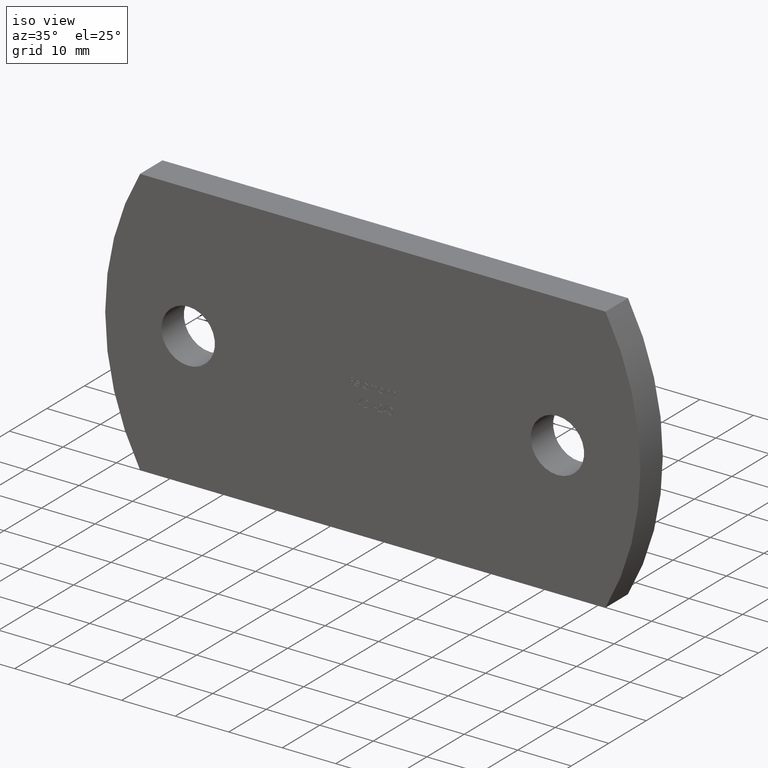
[diagram: clean part render]
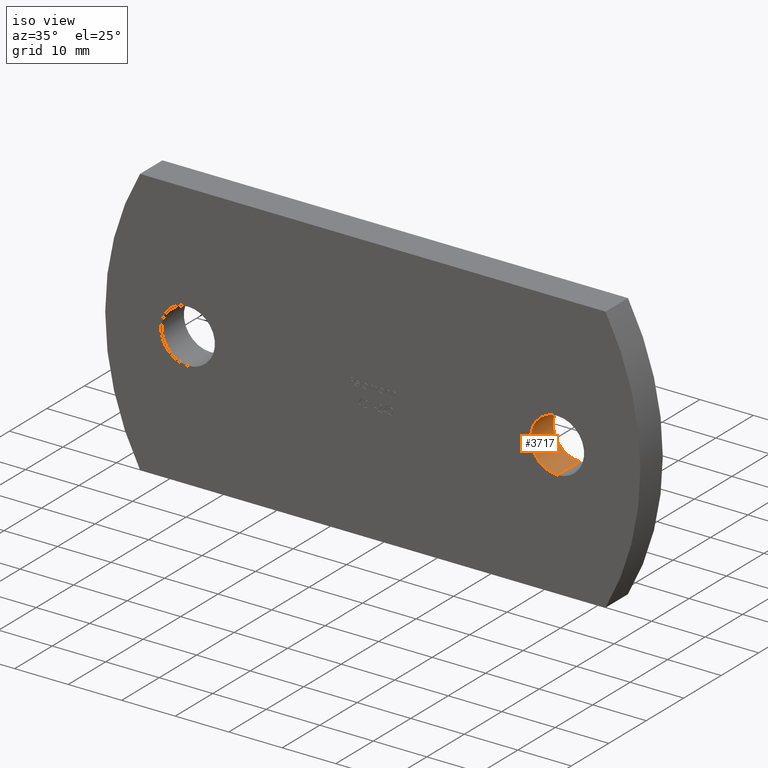
[diagram: same view with one face highlighted and labeled with its STEP entity id]
A machine part, iso view. The second image highlights one B-rep face of the part: STEP entity #3717.
In plain terms, the highlighted cylindrical surface (edge-blend (fillet) strip) has radius 5 mm, axis along (-0, 1, -0).
Its self-contained STEP definition (entity closure, byte-faithful):
#3 = DIRECTION ( 'NONE',  ( 0.000000000000000000, 0.000000000000000000, 1.000000000000000000 ) ) ;
#152 = CARTESIAN_POINT ( 'NONE',  ( 34.50000000000000000, -7.000000000000000000, 4.999999999999988454 ) ) ;
#211 = FACE_OUTER_BOUND ( 'NONE', #6444, .T. ) ;
#1185 = DIRECTION ( 'NONE',  ( 0.000000000000000000, 1.000000000000000000, 0.000000000000000000 ) ) ;
#1960 = CARTESIAN_POINT ( 'NONE',  ( 34.50000000000000000, 3.000000000000000000, 4.999999999999988454 ) ) ;
#2198 = DIRECTION ( 'NONE',  ( 0.000000000000000000, 0.000000000000000000, 1.000000000000000000 ) ) ;
#2554 = DIRECTION ( 'NONE',  ( -0.000000000000000000, 1.000000000000000000, -0.000000000000000000 ) ) ;
#2601 = ORIENTED_EDGE ( 'NONE', *, *, #6723, .F. ) ;
#2811 = CARTESIAN_POINT ( 'NONE',  ( 34.50000000000000000, 3.000000000000000000, -8.450062914116737844E-15 ) ) ;
#2837 = CARTESIAN_POINT ( 'NONE',  ( 34.50000000000000000, -7.000000000000000000, -8.450062914116737844E-15 ) ) ;
#2892 = CARTESIAN_POINT ( 'NONE',  ( 34.50000000000000000, -7.000000000000000000, -5.000000000000006217 ) ) ;
#2995 = ORIENTED_EDGE ( 'NONE', *, *, #9196, .T. ) ;
#3233 = VERTEX_POINT ( 'NONE', #3254 ) ;
#3254 = CARTESIAN_POINT ( 'NONE',  ( 34.50000000000000000, 3.000000000000000000, -5.000000000000006217 ) ) ;
#3717 = ADVANCED_FACE ( 'NONE', ( #211 ), #5805, .F. ) ;
#4144 = ORIENTED_EDGE ( 'NONE', *, *, #7166, .T. ) ;
#4531 = EDGE_CURVE ( 'NONE', #4589, #9303, #9705, .T. ) ;
#4589 = VERTEX_POINT ( 'NONE', #8386 ) ;
#4607 = VECTOR ( 'NONE', #2554, 1000.000000000000000 ) ;
#4780 = DIRECTION ( 'NONE',  ( 0.000000000000000000, 1.000000000000000000, 0.000000000000000000 ) ) ;
#4840 = LINE ( 'NONE', #2892, #8191 ) ;
#5136 = DIRECTION ( 'NONE',  ( 0.000000000000000000, 0.000000000000000000, 1.000000000000000000 ) ) ;
#5375 = DIRECTION ( 'NONE',  ( -0.000000000000000000, 1.000000000000000000, -0.000000000000000000 ) ) ;
#5386 = DIRECTION ( 'NONE',  ( -0.000000000000000000, 1.000000000000000000, -0.000000000000000000 ) ) ;
#5448 = VERTEX_POINT ( 'NONE', #1960 ) ;
#5574 = AXIS2_PLACEMENT_3D ( 'NONE', #2811, #1185, #5136 ) ;
#5805 = CYLINDRICAL_SURFACE ( 'NONE', #7675, 4.999999999999997335 ) ;
#5971 = CIRCLE ( 'NONE', #5574, 4.999999999999997335 ) ;
#6444 = EDGE_LOOP ( 'NONE', ( #8839, #2995, #4144, #2601 ) ) ;
#6723 = EDGE_CURVE ( 'NONE', #9303, #5448, #7725, .T. ) ;
#6726 = AXIS2_PLACEMENT_3D ( 'NONE', #7176, #4780, #3 ) ;
#7166 = EDGE_CURVE ( 'NONE', #3233, #5448, #5971, .T. ) ;
#7176 = CARTESIAN_POINT ( 'NONE',  ( 34.50000000000000000, -3.000000000000000000, -8.450062914116737844E-15 ) ) ;
#7675 = AXIS2_PLACEMENT_3D ( 'NONE', #2837, #5375, #2198 ) ;
#7725 = LINE ( 'NONE', #152, #4607 ) ;
#7822 = CARTESIAN_POINT ( 'NONE',  ( 34.50000000000000000, -3.000000000000000000, 4.999999999999988454 ) ) ;
#8191 = VECTOR ( 'NONE', #5386, 1000.000000000000000 ) ;
#8386 = CARTESIAN_POINT ( 'NONE',  ( 34.50000000000000000, -3.000000000000000000, -5.000000000000006217 ) ) ;
#8839 = ORIENTED_EDGE ( 'NONE', *, *, #4531, .F. ) ;
#9196 = EDGE_CURVE ( 'NONE', #4589, #3233, #4840, .T. ) ;
#9303 = VERTEX_POINT ( 'NONE', #7822 ) ;
#9705 = CIRCLE ( 'NONE', #6726, 4.999999999999997335 ) ;